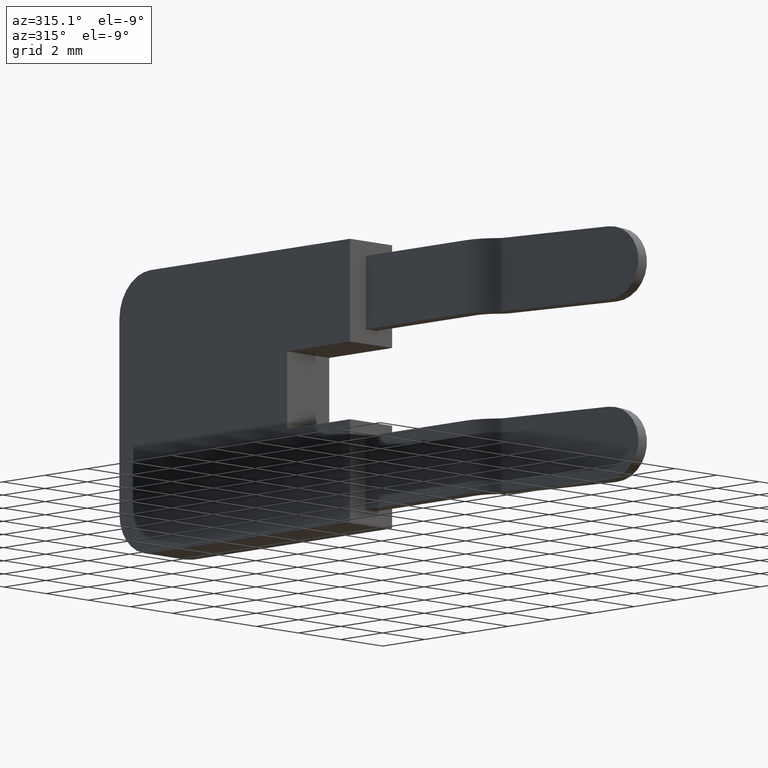
[diagram: clean part render]
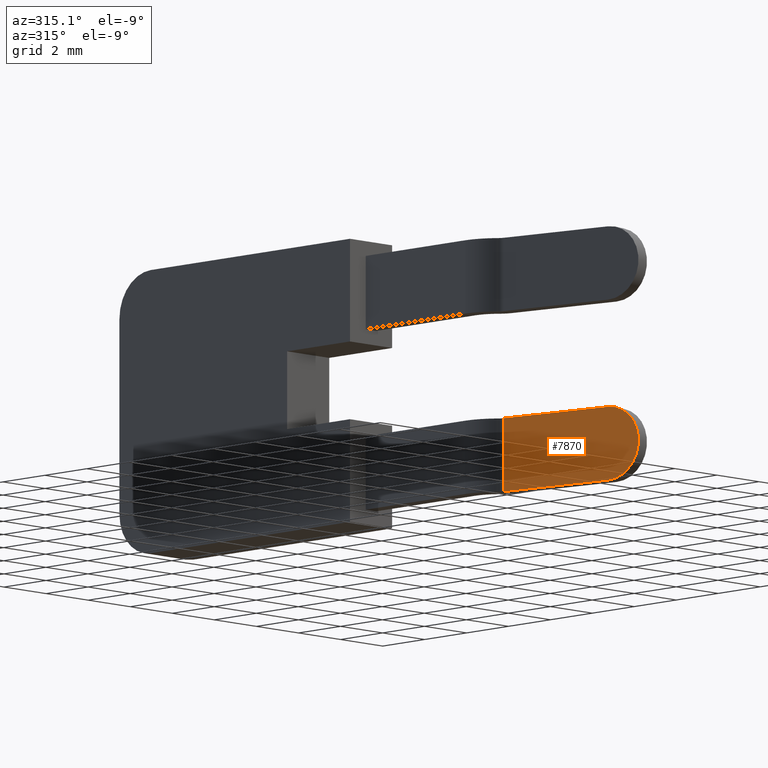
[diagram: same view with one face highlighted and labeled with its STEP entity id]
A machine part, auxiliary view. The second image highlights one B-rep face of the part: STEP entity #7870.
In plain terms, the highlighted planar face has unit normal (-0.9848, -0.1736, 0).
Its self-contained STEP definition (entity closure, byte-faithful):
#5940=CARTESIAN_POINT('',(-17.4551720133747,-15.0694048647758,
0.0321966853307897));
#5950=VERTEX_POINT('',#5940);
#5980=CARTESIAN_POINT('',(-17.4551720133723,-0.0954075198344614,
-2.60812305563928));
#5990=DIRECTION('',(-1.5894797133617E-13,-0.984807753012208,
0.17364817766693));
#6000=VECTOR('',#5990,1.);
#6010=LINE('',#5980,#6000);
#6020=CARTESIAN_POINT('',(-17.4551720133754,-19.3147965205384,
0.780773777916329));
#6030=VERTEX_POINT('',#6020);
#6040=EDGE_CURVE('',#5950,#6030,#6010,.T.);
#7560=CARTESIAN_POINT('',(-19.9551720133747,-15.2115123412641,
0.0572540675961479));
#7570=DIRECTION('',(-2.80607843805253E-14,-0.17364817766693,
-0.984807753012208));
#7580=DIRECTION('',(1.59140616301486E-13,0.984807753012208,
-0.17364817766693));
#7590=AXIS2_PLACEMENT_3D('',#7560,#7570,#7580);
#7600=PLANE('',#7590);
#7610=CARTESIAN_POINT('',(-19.9551720133747,-15.0694048647754,
0.0321966853307898));
#7620=DIRECTION('',(-1.,1.61595616824427E-13,6.03872056969976E-44));
#7630=VECTOR('',#7620,1.);
#7640=LINE('',#7610,#7630);
#7650=CARTESIAN_POINT('',(-19.9551720133747,-15.0694048647754,
0.0321966853307898));
#7660=VERTEX_POINT('',#7650);
#7670=EDGE_CURVE('',#5950,#7660,#7640,.T.);
#7680=ORIENTED_EDGE('',*,*,#7670,.F.);
#7690=CARTESIAN_POINT('',(-19.9551720133723,-0.0954075198340579,
-2.60812305563928));
#7700=DIRECTION('',(-1.5894797133617E-13,-0.984807753012208,
0.17364817766693));
#7710=VECTOR('',#7700,1.);
#7720=LINE('',#7690,#7710);
#7730=CARTESIAN_POINT('',(-19.9551720133754,-19.314796520538,
0.780773777916329));
#7740=VERTEX_POINT('',#7730);
#7750=EDGE_CURVE('',#7660,#7740,#7720,.T.);
#7760=ORIENTED_EDGE('',*,*,#7750,.F.);
#7770=CARTESIAN_POINT('',(-18.7051720133754,-19.3147965205382,
0.780773777916329));
#7780=DIRECTION('',(2.80607843805259E-14,0.173648177666934,
0.984807753012208));
#7790=DIRECTION('',(1.5894797133617E-13,0.984807753012208,
-0.173648177666934));
#7800=AXIS2_PLACEMENT_3D('',#7770,#7780,#7790);
#7810=CIRCLE('',#7800,1.25);
#7820=EDGE_CURVE('',#7740,#6030,#7810,.T.);
#7830=ORIENTED_EDGE('',*,*,#7820,.F.);
#7840=ORIENTED_EDGE('',*,*,#6040,.T.);
#7850=EDGE_LOOP('',(#7840,#7830,#7760,#7680));
#7860=FACE_OUTER_BOUND('',#7850,.T.);
#7870=ADVANCED_FACE('',(#7860),#7600,.T.);